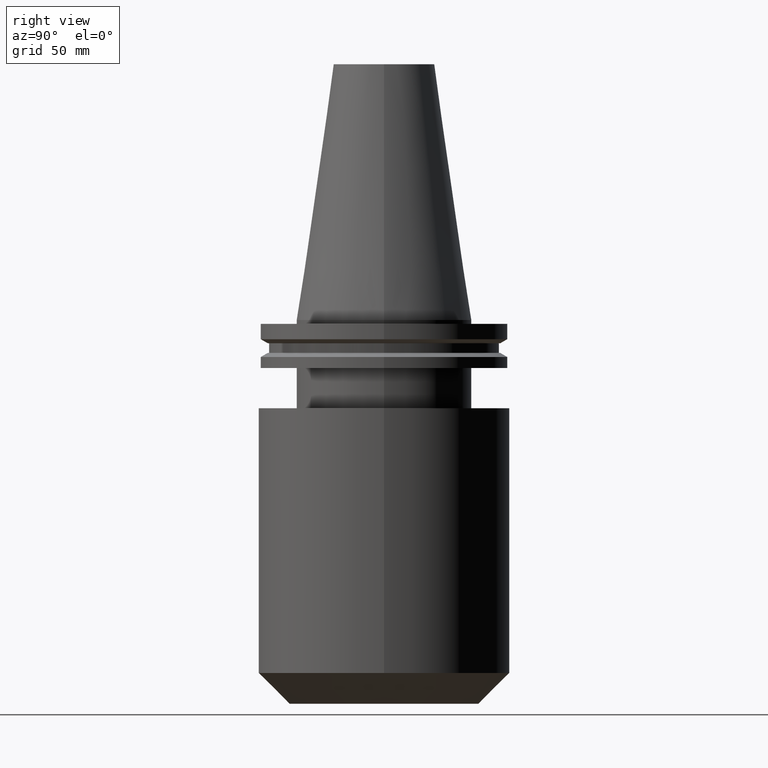
[diagram: clean part render]
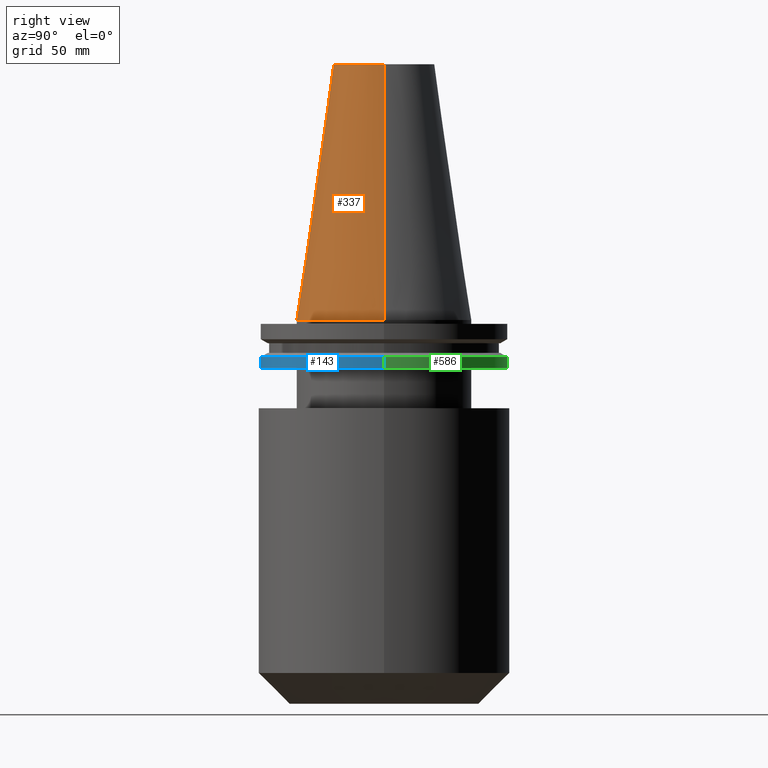
[diagram: same view with three faces highlighted in distinct colors, each labeled with its STEP entity id]
A machine part, right view with three faces highlighted in distinct colors.
Their STEP definitions:

[orange] entity #337 — the highlighted conical surface has half-angle 8.297 deg.
#36 = ORIENTED_EDGE ( 'NONE', *, *, #602, .F. ) ;
#49 = CIRCLE ( 'NONE', #822, 20.10819343178871321 ) ;
#55 = CARTESIAN_POINT ( 'NONE',  ( 0.000000000000000000, 0.000000000000000000, 0.000000000000000000 ) ) ;
#70 = VERTEX_POINT ( 'NONE', #302 ) ;
#91 = EDGE_CURVE ( 'NONE', #552, #546, #191, .T. ) ;
#111 = VERTEX_POINT ( 'NONE', #259 ) ;
#117 = DIRECTION ( 'NONE',  ( -1.000000000000000000, 0.000000000000000000, 0.000000000000000000 ) ) ;
#126 = DIRECTION ( 'NONE',  ( -0.1443082272672999988, 0.000000000000000000, -0.9895327864921755756 ) ) ;
#127 = CARTESIAN_POINT ( 'NONE',  ( 0.000000000000000000, 0.000000000000000000, 0.000000000000000000 ) ) ;
#135 = AXIS2_PLACEMENT_3D ( 'NONE', #127, #190, #443 ) ;
#136 = CARTESIAN_POINT ( 'NONE',  ( 34.92499999999999005, 4.277078946022130098E-15, 0.000000000000000000 ) ) ;
#175 = CIRCLE ( 'NONE', #135, 34.92499999999999005 ) ;
#190 = DIRECTION ( 'NONE',  ( -0.000000000000000000, -0.000000000000000000, 1.000000000000000000 ) ) ;
#191 = LINE ( 'NONE', #444, #560 ) ;
#241 = DIRECTION ( 'NONE',  ( 0.1443082272672999988, 1.767266086135277066E-17, -0.9895327864921755756 ) ) ;
#259 = CARTESIAN_POINT ( 'NONE',  ( -34.92499999999999005, 0.000000000000000000, 0.000000000000000000 ) ) ;
#277 = ORIENTED_EDGE ( 'NONE', *, *, #803, .T. ) ;
#281 = AXIS2_PLACEMENT_3D ( 'NONE', #55, #305, #117 ) ;
#302 = CARTESIAN_POINT ( 'NONE',  ( -20.10819343178871321, 0.000000000000000000, 101.5999999999999801 ) ) ;
#305 = DIRECTION ( 'NONE',  ( 0.000000000000000000, 0.000000000000000000, -1.000000000000000000 ) ) ;
#308 = CARTESIAN_POINT ( 'NONE',  ( -34.92499999999999005, 0.000000000000000000, 0.000000000000000000 ) ) ;
#337 = ADVANCED_FACE ( 'NONE', ( #634 ), #532, .T. ) ;
#343 = DIRECTION ( 'NONE',  ( -0.000000000000000000, -0.000000000000000000, 1.000000000000000000 ) ) ;
#383 = EDGE_CURVE ( 'NONE', #111, #546, #175, .T. ) ;
#420 = ORIENTED_EDGE ( 'NONE', *, *, #91, .F. ) ;
#427 = VECTOR ( 'NONE', #126, 999.9999999999998863 ) ;
#443 = DIRECTION ( 'NONE',  ( 1.000000000000000000, 0.000000000000000000, 0.000000000000000000 ) ) ;
#444 = CARTESIAN_POINT ( 'NONE',  ( 34.92499999999999005, 4.277078946022130098E-15, 0.000000000000000000 ) ) ;
#532 = CONICAL_SURFACE ( 'NONE', #281, 34.92499999999999005, 0.1448138465474119452 ) ;
#546 = VERTEX_POINT ( 'NONE', #136 ) ;
#552 = VERTEX_POINT ( 'NONE', #797 ) ;
#560 = VECTOR ( 'NONE', #241, 999.9999999999998863 ) ;
#587 = DIRECTION ( 'NONE',  ( 1.000000000000000000, 0.000000000000000000, 0.000000000000000000 ) ) ;
#602 = EDGE_CURVE ( 'NONE', #70, #552, #49, .T. ) ;
#634 = FACE_OUTER_BOUND ( 'NONE', #686, .T. ) ;
#675 = CARTESIAN_POINT ( 'NONE',  ( 0.000000000000000000, 0.000000000000000000, 101.5999999999999801 ) ) ;
#686 = EDGE_LOOP ( 'NONE', ( #420, #36, #277, #800 ) ) ;
#712 = LINE ( 'NONE', #308, #427 ) ;
#797 = CARTESIAN_POINT ( 'NONE',  ( 20.10819343178871321, 3.369811209154858606E-15, 101.5999999999999801 ) ) ;
#800 = ORIENTED_EDGE ( 'NONE', *, *, #383, .T. ) ;
#803 = EDGE_CURVE ( 'NONE', #70, #111, #712, .T. ) ;
#822 = AXIS2_PLACEMENT_3D ( 'NONE', #675, #343, #587 ) ;

[blue] entity #143 — the highlighted cylindrical surface (partial cylindrical patch) has radius 49.215 mm, axis along (-0, -0, 1).
#4 = CARTESIAN_POINT ( 'NONE',  ( 0.000000000000000000, 0.000000000000000000, 101.5999999999999943 ) ) ;
#22 = AXIS2_PLACEMENT_3D ( 'NONE', #792, #74, #729 ) ;
#28 = ORIENTED_EDGE ( 'NONE', *, *, #431, .F. ) ;
#74 = DIRECTION ( 'NONE',  ( -0.000000000000000000, -0.000000000000000000, 1.000000000000000000 ) ) ;
#89 = AXIS2_PLACEMENT_3D ( 'NONE', #4, #202, #794 ) ;
#90 = CIRCLE ( 'NONE', #22, 49.21499999999998920 ) ;
#105 = ORIENTED_EDGE ( 'NONE', *, *, #468, .T. ) ;
#143 = ADVANCED_FACE ( 'NONE', ( #459 ), #387, .T. ) ;
#197 = LINE ( 'NONE', #520, #491 ) ;
#202 = DIRECTION ( 'NONE',  ( -0.000000000000000000, -0.000000000000000000, 1.000000000000000000 ) ) ;
#204 = DIRECTION ( 'NONE',  ( -0.000000000000000000, -0.000000000000000000, 1.000000000000000000 ) ) ;
#217 = ORIENTED_EDGE ( 'NONE', *, *, #489, .F. ) ;
#227 = AXIS2_PLACEMENT_3D ( 'NONE', #449, #204, #666 ) ;
#230 = EDGE_LOOP ( 'NONE', ( #28, #105, #324, #217 ) ) ;
#238 = CARTESIAN_POINT ( 'NONE',  ( 49.21499999999998920, 0.000000000000000000, -14.65761014474876944 ) ) ;
#251 = LINE ( 'NONE', #494, #391 ) ;
#263 = DIRECTION ( 'NONE',  ( -0.000000000000000000, -0.000000000000000000, 1.000000000000000000 ) ) ;
#288 = VERTEX_POINT ( 'NONE', #238 ) ;
#324 = ORIENTED_EDGE ( 'NONE', *, *, #761, .T. ) ;
#367 = CARTESIAN_POINT ( 'NONE',  ( -49.21499999999998920, 6.027099222003697037E-15, -19.04999999999999716 ) ) ;
#387 = CYLINDRICAL_SURFACE ( 'NONE', #89, 49.21499999999998920 ) ;
#391 = VECTOR ( 'NONE', #777, 1000.000000000000000 ) ;
#431 = EDGE_CURVE ( 'NONE', #747, #808, #197, .T. ) ;
#449 = CARTESIAN_POINT ( 'NONE',  ( 0.000000000000000000, 0.000000000000000000, -19.04999999999999716 ) ) ;
#459 = FACE_OUTER_BOUND ( 'NONE', #230, .T. ) ;
#468 = EDGE_CURVE ( 'NONE', #747, #690, #753, .T. ) ;
#489 = EDGE_CURVE ( 'NONE', #808, #288, #90, .T. ) ;
#491 = VECTOR ( 'NONE', #263, 1000.000000000000000 ) ;
#494 = CARTESIAN_POINT ( 'NONE',  ( 49.21499999999998920, 0.000000000000000000, 101.5999999999999943 ) ) ;
#520 = CARTESIAN_POINT ( 'NONE',  ( -49.21499999999998920, 6.027099222003697037E-15, 101.5999999999999943 ) ) ;
#567 = CARTESIAN_POINT ( 'NONE',  ( -49.21499999999998920, 6.027099222003697037E-15, -14.65761014474876944 ) ) ;
#666 = DIRECTION ( 'NONE',  ( 1.000000000000000000, 0.000000000000000000, 0.000000000000000000 ) ) ;
#690 = VERTEX_POINT ( 'NONE', #830 ) ;
#729 = DIRECTION ( 'NONE',  ( 1.000000000000000000, 0.000000000000000000, 0.000000000000000000 ) ) ;
#747 = VERTEX_POINT ( 'NONE', #367 ) ;
#753 = CIRCLE ( 'NONE', #227, 49.21499999999998920 ) ;
#761 = EDGE_CURVE ( 'NONE', #690, #288, #251, .T. ) ;
#777 = DIRECTION ( 'NONE',  ( -0.000000000000000000, -0.000000000000000000, 1.000000000000000000 ) ) ;
#792 = CARTESIAN_POINT ( 'NONE',  ( 0.000000000000000000, 0.000000000000000000, -14.65761014474876944 ) ) ;
#794 = DIRECTION ( 'NONE',  ( 1.000000000000000000, 0.000000000000000000, 0.000000000000000000 ) ) ;
#808 = VERTEX_POINT ( 'NONE', #567 ) ;
#830 = CARTESIAN_POINT ( 'NONE',  ( 49.21499999999998920, 0.000000000000000000, -19.04999999999999716 ) ) ;

[green] entity #586 — the highlighted cylindrical surface (partial cylindrical patch) has radius 49.215 mm, axis along (-0, -0, 1).
#77 = CIRCLE ( 'NONE', #318, 49.21499999999998920 ) ;
#168 = DIRECTION ( 'NONE',  ( -0.000000000000000000, -0.000000000000000000, 1.000000000000000000 ) ) ;
#194 = DIRECTION ( 'NONE',  ( -0.000000000000000000, -0.000000000000000000, 1.000000000000000000 ) ) ;
#197 = LINE ( 'NONE', #520, #491 ) ;
#234 = CARTESIAN_POINT ( 'NONE',  ( 0.000000000000000000, 0.000000000000000000, -19.04999999999999716 ) ) ;
#238 = CARTESIAN_POINT ( 'NONE',  ( 49.21499999999998920, 0.000000000000000000, -14.65761014474876944 ) ) ;
#242 = CIRCLE ( 'NONE', #452, 49.21499999999998920 ) ;
#245 = CARTESIAN_POINT ( 'NONE',  ( 0.000000000000000000, 0.000000000000000000, -14.65761014474876944 ) ) ;
#251 = LINE ( 'NONE', #494, #391 ) ;
#263 = DIRECTION ( 'NONE',  ( -0.000000000000000000, -0.000000000000000000, 1.000000000000000000 ) ) ;
#267 = ORIENTED_EDGE ( 'NONE', *, *, #737, .T. ) ;
#274 = ORIENTED_EDGE ( 'NONE', *, *, #335, .F. ) ;
#279 = FACE_OUTER_BOUND ( 'NONE', #809, .T. ) ;
#288 = VERTEX_POINT ( 'NONE', #238 ) ;
#318 = AXIS2_PLACEMENT_3D ( 'NONE', #245, #194, #851 ) ;
#335 = EDGE_CURVE ( 'NONE', #288, #808, #77, .T. ) ;
#362 = AXIS2_PLACEMENT_3D ( 'NONE', #741, #407, #659 ) ;
#367 = CARTESIAN_POINT ( 'NONE',  ( -49.21499999999998920, 6.027099222003697037E-15, -19.04999999999999716 ) ) ;
#391 = VECTOR ( 'NONE', #777, 1000.000000000000000 ) ;
#407 = DIRECTION ( 'NONE',  ( -0.000000000000000000, -0.000000000000000000, 1.000000000000000000 ) ) ;
#431 = EDGE_CURVE ( 'NONE', #747, #808, #197, .T. ) ;
#452 = AXIS2_PLACEMENT_3D ( 'NONE', #234, #168, #485 ) ;
#485 = DIRECTION ( 'NONE',  ( 1.000000000000000000, 0.000000000000000000, 0.000000000000000000 ) ) ;
#491 = VECTOR ( 'NONE', #263, 1000.000000000000000 ) ;
#494 = CARTESIAN_POINT ( 'NONE',  ( 49.21499999999998920, 0.000000000000000000, 101.5999999999999943 ) ) ;
#520 = CARTESIAN_POINT ( 'NONE',  ( -49.21499999999998920, 6.027099222003697037E-15, 101.5999999999999943 ) ) ;
#527 = CYLINDRICAL_SURFACE ( 'NONE', #362, 49.21499999999998920 ) ;
#567 = CARTESIAN_POINT ( 'NONE',  ( -49.21499999999998920, 6.027099222003697037E-15, -14.65761014474876944 ) ) ;
#586 = ADVANCED_FACE ( 'NONE', ( #279 ), #527, .T. ) ;
#659 = DIRECTION ( 'NONE',  ( 1.000000000000000000, 0.000000000000000000, 0.000000000000000000 ) ) ;
#690 = VERTEX_POINT ( 'NONE', #830 ) ;
#737 = EDGE_CURVE ( 'NONE', #690, #747, #242, .T. ) ;
#741 = CARTESIAN_POINT ( 'NONE',  ( 0.000000000000000000, 0.000000000000000000, 101.5999999999999943 ) ) ;
#747 = VERTEX_POINT ( 'NONE', #367 ) ;
#756 = ORIENTED_EDGE ( 'NONE', *, *, #761, .F. ) ;
#761 = EDGE_CURVE ( 'NONE', #690, #288, #251, .T. ) ;
#777 = DIRECTION ( 'NONE',  ( -0.000000000000000000, -0.000000000000000000, 1.000000000000000000 ) ) ;
#808 = VERTEX_POINT ( 'NONE', #567 ) ;
#809 = EDGE_LOOP ( 'NONE', ( #267, #813, #274, #756 ) ) ;
#813 = ORIENTED_EDGE ( 'NONE', *, *, #431, .T. ) ;
#830 = CARTESIAN_POINT ( 'NONE',  ( 49.21499999999998920, 0.000000000000000000, -19.04999999999999716 ) ) ;
#851 = DIRECTION ( 'NONE',  ( 1.000000000000000000, 0.000000000000000000, 0.000000000000000000 ) ) ;